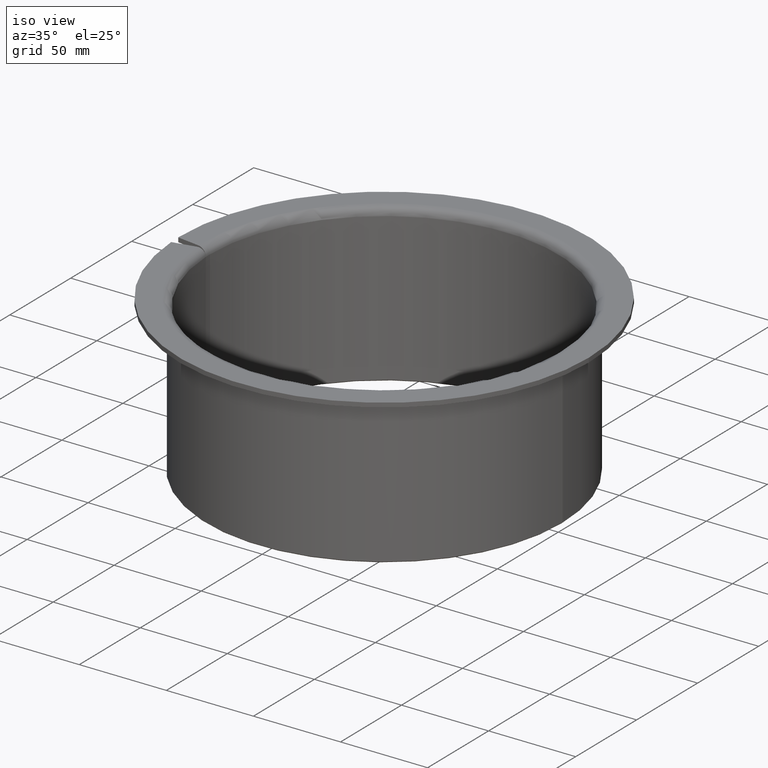
[diagram: clean part render]
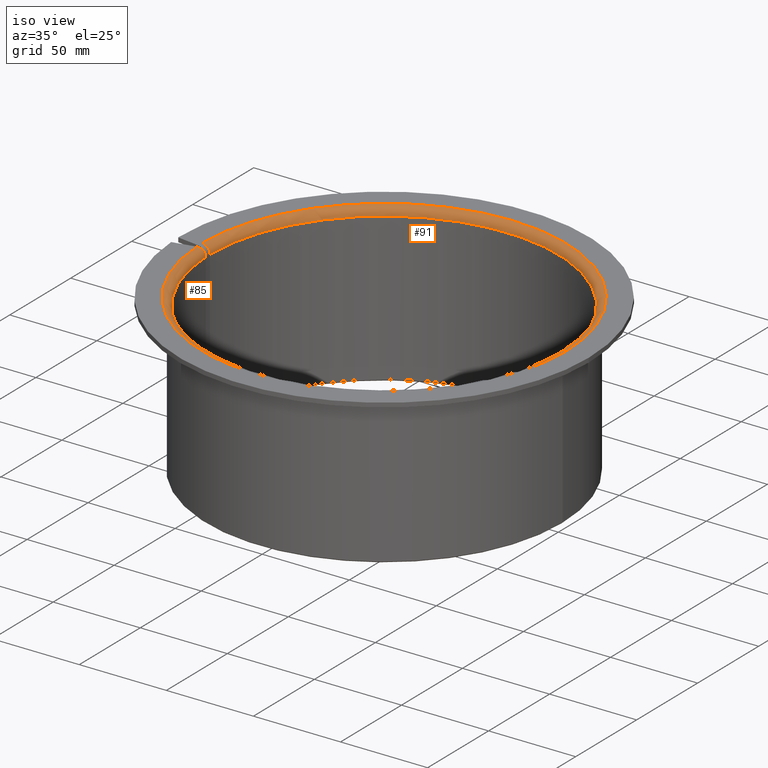
[diagram: same view with one multi-face feature highlighted, each face labeled with its STEP entity id]
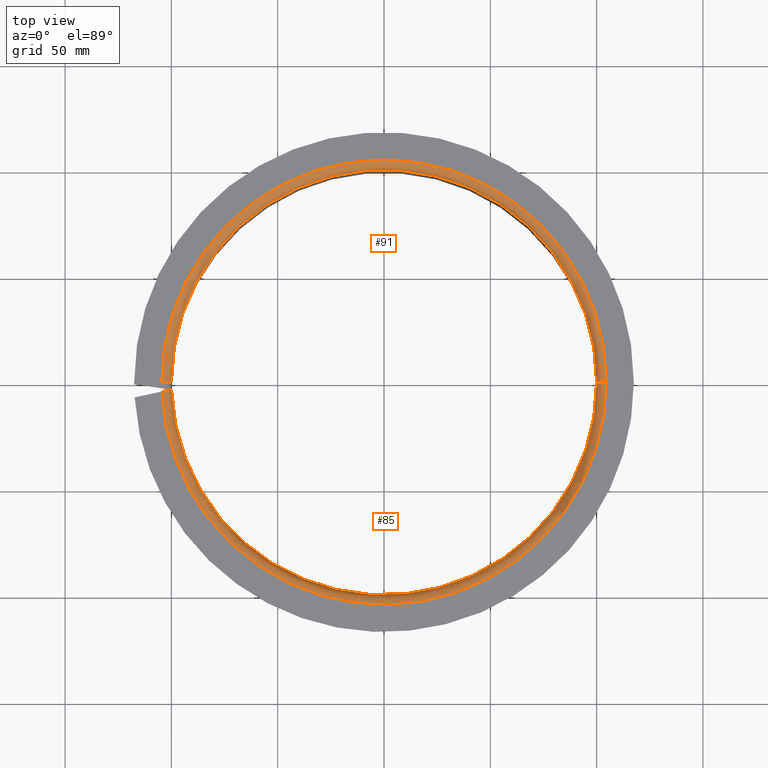
[diagram: same view with one multi-face feature highlighted, each face labeled with its STEP entity id]
A machine part, iso view. The highlighted faces form ONE feature: a constant-radius fillet chain: 2 tangent blend faces with common blend radius 4.5 mm. The faces share edges in the B-rep.
A second angle (top view) of the same feature is appended — it is thin or edge-on in the first view.
Their STEP definitions:
[1] entity #85 (Torus):
#85=ADVANCED_FACE('',(#122),#123,.T.);
#122=FACE_OUTER_BOUND('',#174,.T.);
#123=TOROIDAL_SURFACE('',#175,104.5,4.5);
#174=EDGE_LOOP('',(#276,#277,#278,#279));
#175=AXIS2_PLACEMENT_3D('',#280,#281,#282);
#276=ORIENTED_EDGE('',*,*,#447,.F.);
#277=ORIENTED_EDGE('',*,*,#448,.F.);
#278=ORIENTED_EDGE('',*,*,#449,.T.);
#279=ORIENTED_EDGE('',*,*,#450,.T.);
#280=CARTESIAN_POINT('',(2.22044604925031E-015,-3.71059565656411E-015,85.5));
#281=DIRECTION('',(-1.16269284789061E-031,-6.12323399573677E-017,1.0));
#282=DIRECTION('',(-1.0,1.89882151931499E-015,0.0));
#447=EDGE_CURVE('',#540,#541,#542,.T.);
#448=EDGE_CURVE('',#543,#540,#544,.T.);
#449=EDGE_CURVE('',#543,#545,#546,.T.);
#450=EDGE_CURVE('',#545,#541,#547,.T.);
#540=VERTEX_POINT('',#673);
#541=VERTEX_POINT('',#674);
#542=CIRCLE('',#675,4.5);
#543=VERTEX_POINT('',#676);
#544=CIRCLE('',#677,100.0);
#545=VERTEX_POINT('',#678);
#546=B_SPLINE_CURVE_WITH_KNOTS('',3,(#679,#680,#681,#682,#683,#684,#685,#686,#687,#688,#689,#690,#691,#692,#693,#694,#695,#696,#697,#698,#699,#700),.UNSPECIFIED.,.F.,.F.,(4,2,2,2,2,2,2,2,2,2,4),(1.25938452795963,1.34229239841091,1.42520026886219,1.50810813931348,1.59166693832328,1.67522573733309,1.75953879120295,1.84385184507282,1.92873356000877,2.01361527494473,2.0984473502713),.UNSPECIFIED.);
#547=CIRCLE('',#701,104.5);
#673=CARTESIAN_POINT('',(100.0,-2.04054855228831E-013,85.5));
#674=CARTESIAN_POINT('',(104.5,-2.15210549005878E-013,90.0));
#675=AXIS2_PLACEMENT_3D('',#847,#848,#849);
#676=CARTESIAN_POINT('',(-99.9390827019096,-3.48994967024958,85.5));
#677=AXIS2_PLACEMENT_3D('',#850,#851,#852);
#678=CARTESIAN_POINT('',(-104.405661574246,-4.43935031778064,90.0));
#679=CARTESIAN_POINT('',(-100.024099547291,-3.50802055858797,84.6264755855063));
#680=CARTESIAN_POINT('',(-99.9660437626951,-3.49568042062911,84.9218691646232));
#681=CARTESIAN_POINT('',(-99.9390827019096,-3.48994967024958,85.223640431829));
#682=CARTESIAN_POINT('',(-99.9390827019096,-3.48994967024958,85.7763595681709));
#683=CARTESIAN_POINT('',(-99.9660437626951,-3.49568042062911,86.0781308353767));
#684=CARTESIAN_POINT('',(-100.082155331888,-3.52036069654683,86.6689179936105));
#685=CARTESIAN_POINT('',(-100.171295433478,-3.53930801004775,86.9579360223223));
#686=CARTESIAN_POINT('',(-100.380595379778,-3.5837960869909,87.4699087099126));
#687=CARTESIAN_POINT('',(-100.52040271772,-3.61351305404012,87.7397997071938));
#688=CARTESIAN_POINT('',(-100.852779866613,-3.68416199798651,88.2432257769719));
#689=CARTESIAN_POINT('',(-101.04532931062,-3.72508964575592,88.4767749035632));
#690=CARTESIAN_POINT('',(-101.434129226217,-3.80773161899273,88.8706361690345));
#691=CARTESIAN_POINT('',(-101.666545836991,-3.85713329465387,89.0668828579887));
#692=CARTESIAN_POINT('',(-102.166556006817,-3.96341373715198,89.4050948369485));
#693=CARTESIAN_POINT('',(-102.434137224919,-4.02028988083928,89.5470791956421));
#694=CARTESIAN_POINT('',(-102.944438735496,-4.12875781534249,89.7613299984439));
#695=CARTESIAN_POINT('',(-103.234375950949,-4.19038587295918,89.8530169271526));
#696=CARTESIAN_POINT('',(-103.826609977608,-4.31626910136982,89.972348381857));
#697=CARTESIAN_POINT('',(-104.128905421544,-4.38052398154119,90.0));
#698=CARTESIAN_POINT('',(-104.682255877399,-4.49814225183634,90.0));
#699=CARTESIAN_POINT('',(-104.984377776049,-4.56236024381845,89.9723807695978));
#700=CARTESIAN_POINT('',(-105.280316728048,-4.62526400991953,89.9127438602028));
#701=AXIS2_PLACEMENT_3D('',#853,#854,#855);
#847=CARTESIAN_POINT('',(104.5,-2.1493500347607E-013,85.5));
#848=DIRECTION('',(2.02128619922972E-015,1.0,6.12323399573677E-017));
#849=DIRECTION('',(1.0,-2.02128619922972E-015,-7.49879891330928E-033));
#850=CARTESIAN_POINT('',(-7.04575888216064E-030,-3.7105956565641E-015,85.5));
#851=DIRECTION('',(-1.16269284789061E-031,-6.12323399573677E-017,1.0));
#852=DIRECTION('',(-1.0,1.87715863181855E-015,-1.32646929163972E-033));
#853=CARTESIAN_POINT('',(-7.04575888216064E-030,-3.7105956565641E-015,90.0));
#854=DIRECTION('',(-1.16269284789061E-031,-6.12323399573677E-017,1.0));
#855=DIRECTION('',(-1.0,1.87715863181855E-015,-1.32646929163971E-033));
[2] entity #91 (Torus):
#91=ADVANCED_FACE('',(#134),#135,.T.);
#134=FACE_OUTER_BOUND('',#186,.T.);
#135=TOROIDAL_SURFACE('',#187,104.5,4.5);
#186=EDGE_LOOP('',(#324,#325,#326,#327));
#187=AXIS2_PLACEMENT_3D('',#328,#329,#330);
#324=ORIENTED_EDGE('',*,*,#451,.T.);
#325=ORIENTED_EDGE('',*,*,#458,.F.);
#326=ORIENTED_EDGE('',*,*,#447,.T.);
#327=ORIENTED_EDGE('',*,*,#465,.T.);
#328=CARTESIAN_POINT('',(2.22044604925031E-015,-3.71059565656411E-015,85.5));
#329=DIRECTION('',(-1.16269284789061E-031,-6.12323399573677E-017,1.0));
#330=DIRECTION('',(-1.0,1.89882151931499E-015,0.0));
#447=EDGE_CURVE('',#540,#541,#542,.T.);
#451=EDGE_CURVE('',#548,#549,#550,.T.);
#458=EDGE_CURVE('',#540,#549,#558,.T.);
#465=EDGE_CURVE('',#541,#548,#566,.T.);
#540=VERTEX_POINT('',#673);
#541=VERTEX_POINT('',#674);
#542=CIRCLE('',#675,4.5);
#548=VERTEX_POINT('',#702);
#549=VERTEX_POINT('',#703);
#550=CIRCLE('',#704,4.5);
#558=CIRCLE('',#736,100.0);
#566=CIRCLE('',#750,104.5);
#673=CARTESIAN_POINT('',(100.0,-2.04054855228831E-013,85.5));
#674=CARTESIAN_POINT('',(104.5,-2.15210549005878E-013,90.0));
#675=AXIS2_PLACEMENT_3D('',#847,#848,#849);
#702=CARTESIAN_POINT('',(-104.5,2.07238266633134E-013,90.0));
#703=CARTESIAN_POINT('',(-100.0,1.95869807117827E-013,85.5));
#704=AXIS2_PLACEMENT_3D('',#856,#857,#858);
#736=AXIS2_PLACEMENT_3D('',#868,#869,#870);
#750=AXIS2_PLACEMENT_3D('',#878,#879,#880);
#847=CARTESIAN_POINT('',(104.5,-2.1493500347607E-013,85.5));
#848=DIRECTION('',(2.02128619922972E-015,1.0,6.12323399573677E-017));
#849=DIRECTION('',(1.0,-2.02128619922972E-015,-7.49879891330928E-033));
#856=CARTESIAN_POINT('',(-104.5,2.07513812162942E-013,85.5));
#857=DIRECTION('',(2.02128619922972E-015,1.0,6.12323399573677E-017));
#858=DIRECTION('',(-1.0,2.02128619922972E-015,7.49879891330928E-033));
#868=CARTESIAN_POINT('',(-7.04575888216064E-030,-3.7105956565641E-015,85.5));
#869=DIRECTION('',(-1.16269284789061E-031,-6.12323399573677E-017,1.0));
#870=DIRECTION('',(-1.0,1.87715863181855E-015,-1.32646929163972E-033));
#878=CARTESIAN_POINT('',(-7.04575888216064E-030,-3.7105956565641E-015,90.0));
#879=DIRECTION('',(-1.16269284789061E-031,-6.12323399573677E-017,1.0));
#880=DIRECTION('',(-1.0,1.87715863181855E-015,-1.32646929163971E-033));